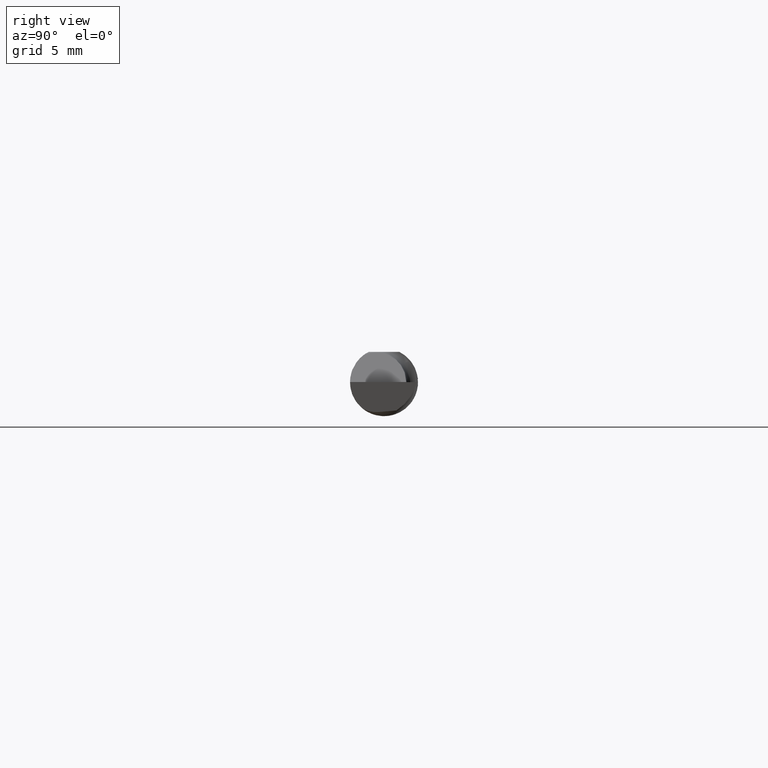
[diagram: clean part render]
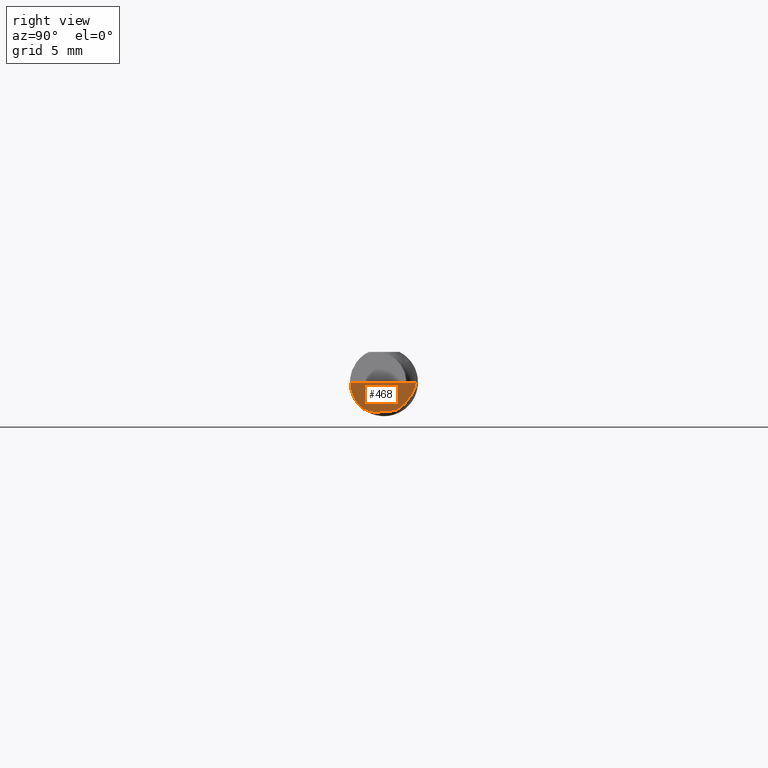
[diagram: same view with one face highlighted and labeled with its STEP entity id]
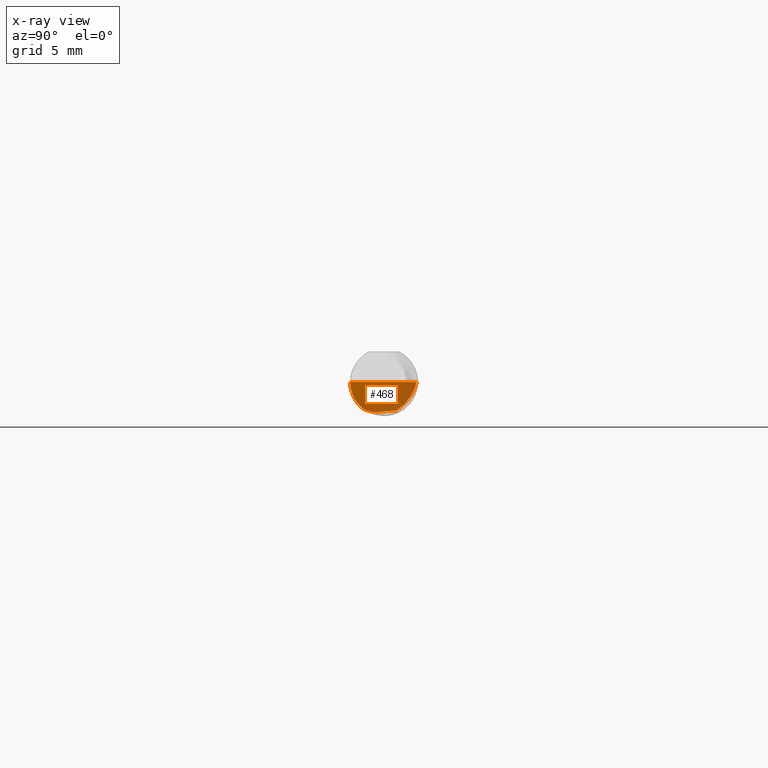
[diagram: x-ray of the same camera — body ghosted, the highlighted face saturated]
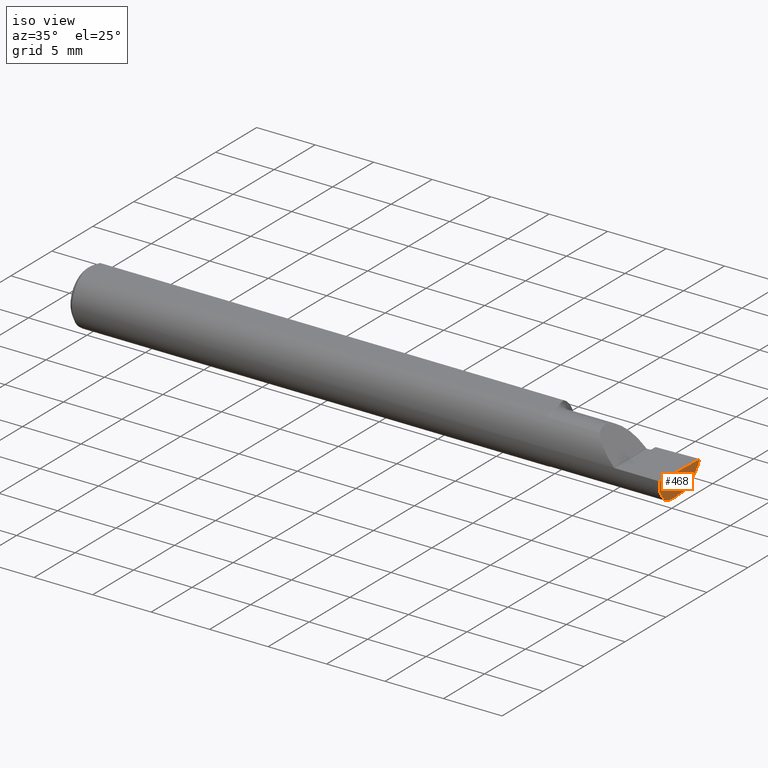
[diagram: same view with one face highlighted and labeled with its STEP entity id]
A machine part, right view. The second image highlights one B-rep face of the part: STEP entity #468.
The next image is the same camera in x-ray: the body ghosted, the highlighted face saturated — about 0% of this face is hidden behind the body in this view.
A second angle (iso view) of the same face is appended — the face is thin or edge-on in the first view.
In plain terms, the highlighted planar face has unit normal (-0.992, 0.0344, 0.1219).
Its self-contained STEP definition (entity closure, byte-faithful):
#16 = CARTESIAN_POINT ( 'NONE',  ( 1.985817582123950320, -0.05743333333333348889, -0.07390786306085575519 ) ) ;
#30 = VECTOR ( 'NONE', #187, 39.37007874015748854 ) ;
#36 = CARTESIAN_POINT ( 'NONE',  ( 1.995700996757002965, 0.08264169502808201007, -0.03297536001410257545 ) ) ;
#52 = EDGE_CURVE ( 'NONE', #448, #343, #501, .T. ) ;
#67 = DIRECTION ( 'NONE',  ( 0.1219414168599299853, 0.000000000000000000, 0.9925372994775525370 ) ) ;
#77 =( BOUNDED_CURVE ( )  B_SPLINE_CURVE ( 3, ( #375, #621, #36, #554 ),
 .UNSPECIFIED., .F., .T. ) 
 B_SPLINE_CURVE_WITH_KNOTS ( ( 4, 4 ),
 ( 3.960321937159471783, 4.773880858322181453 ),
 .UNSPECIFIED. ) 
 CURVE ( )  GEOMETRIC_REPRESENTATION_ITEM ( )  RATIONAL_B_SPLINE_CURVE ( ( 1.000000000000000000, 0.9455998676827520599, 0.9455998676827520599, 1.000000000000000000 ) ) 
 REPRESENTATION_ITEM ( '' )  );
#83 = VERTEX_POINT ( 'NONE', #603 ) ;
#100 = CARTESIAN_POINT ( 'NONE',  ( 2.000000000000000444, 0.08978918869558996652, 4.097771990496394828E-16 ) ) ;
#107 = CARTESIAN_POINT ( 'NONE',  ( 1.999939969396823392, 0.08805703149137224239, -1.868634782302818344E-17 ) ) ;
#120 =( BOUNDED_CURVE ( )  B_SPLINE_CURVE ( 3, ( #171, #362, #274, #127 ),
 .UNSPECIFIED., .F., .F. ) 
 B_SPLINE_CURVE_WITH_KNOTS ( ( 4, 4 ),
 ( 0.3856751006538576276, 1.295854645076564893 ),
 .UNSPECIFIED. ) 
 CURVE ( )  GEOMETRIC_REPRESENTATION_ITEM ( )  RATIONAL_B_SPLINE_CURVE ( ( 1.000000000000000000, 0.9321477153702213414, 0.9321477153702213414, 1.000000000000000000 ) ) 
 REPRESENTATION_ITEM ( '' )  );
#125 = ORIENTED_EDGE ( 'NONE', *, *, #183, .T. ) ;
#127 = CARTESIAN_POINT ( 'NONE',  ( 1.993644362309209273, -0.09359999999999998876, -1.868634782302818344E-17 ) ) ;
#134 = AXIS2_PLACEMENT_3D ( 'NONE', #308, #302, #67 ) ;
#152 = CARTESIAN_POINT ( 'NONE',  ( 1.993644362309209273, -0.09359999999999998876, -1.868634782302818344E-17 ) ) ;
#171 = CARTESIAN_POINT ( 'NONE',  ( 1.985817582123950320, -0.05743333333333348889, -0.07390786306085575519 ) ) ;
#183 = EDGE_CURVE ( 'NONE', #83, #354, #77, .T. ) ;
#187 = DIRECTION ( 'NONE',  ( 0.03463576215158526567, 0.9994000019912840926, 0.000000000000000000 ) ) ;
#190 = EDGE_LOOP ( 'NONE', ( #548, #241, #125, #307, #410 ) ) ;
#209 = EDGE_CURVE ( 'NONE', #343, #83, #234, .T. ) ;
#234 = LINE ( 'NONE', #467, #348 ) ;
#241 = ORIENTED_EDGE ( 'NONE', *, *, #209, .T. ) ;
#262 = CARTESIAN_POINT ( 'NONE',  ( 1.985638364069035822, -0.02892578711483820980, -0.08340817113563987750 ) ) ;
#272 = DIRECTION ( 'NONE',  ( 0.04518627981622180823, 0.9951771633164323561, 0.08706671999006805607 ) ) ;
#274 = CARTESIAN_POINT ( 'NONE',  ( 1.990029385046013344, -0.09360000000000001652, -0.02942396326758928149 ) ) ;
#298 = PLANE ( 'NONE',  #134 ) ;
#302 = DIRECTION ( 'NONE',  ( -0.9919506264397697226, 0.03437759245049861606, 0.1218693392246628648 ) ) ;
#307 = ORIENTED_EDGE ( 'NONE', *, *, #408, .F. ) ;
#308 = CARTESIAN_POINT ( 'NONE',  ( 1.959014883581128075, 0.09122042049864560742, -0.3340004505562900183 ) ) ;
#342 = LINE ( 'NONE', #107, #30 ) ;
#343 = VERTEX_POINT ( 'NONE', #573 ) ;
#348 = VECTOR ( 'NONE', #272, 39.37007874015748854 ) ;
#354 = VERTEX_POINT ( 'NONE', #100 ) ;
#362 = CARTESIAN_POINT ( 'NONE',  ( 1.987230551035694237, -0.08066690435778477164, -0.05585320183932564186 ) ) ;
#375 = CARTESIAN_POINT ( 'NONE',  ( 1.988502654630791344, 0.03415700188930223535, -0.07788914223418023919 ) ) ;
#405 = CARTESIAN_POINT ( 'NONE',  ( 1.985817582123950320, -0.05743333333333348889, -0.07390786306085575519 ) ) ;
#407 = VERTEX_POINT ( 'NONE', #152 ) ;
#408 = EDGE_CURVE ( 'NONE', #407, #354, #342, .T. ) ;
#410 = ORIENTED_EDGE ( 'NONE', *, *, #588, .F. ) ;
#448 = VERTEX_POINT ( 'NONE', #405 ) ;
#467 = CARTESIAN_POINT ( 'NONE',  ( 1.986352243447293553, -0.01320339400140365695, -0.08203263997471643698 ) ) ;
#468 = ADVANCED_FACE ( 'NONE', ( #545 ), #298, .F. ) ;
#500 = CARTESIAN_POINT ( 'NONE',  ( 1.985465187176707502, -0.04383112193845185856, -0.08061315639902377761 ) ) ;
#501 =( BOUNDED_CURVE ( )  B_SPLINE_CURVE ( 3, ( #16, #500, #262, #606 ),
 .UNSPECIFIED., .F., .T. ) 
 B_SPLINE_CURVE_WITH_KNOTS ( ( 4, 4 ),
 ( 6.100130346660554537, 6.645393451497628057 ),
 .UNSPECIFIED. ) 
 CURVE ( )  GEOMETRIC_REPRESENTATION_ITEM ( )  RATIONAL_B_SPLINE_CURVE ( ( 1.000000000000000000, 0.9753770948873836666, 0.9753770948873836666, 1.000000000000000000 ) ) 
 REPRESENTATION_ITEM ( '' )  );
#545 = FACE_OUTER_BOUND ( 'NONE', #190, .T. ) ;
#548 = ORIENTED_EDGE ( 'NONE', *, *, #52, .T. ) ;
#554 = CARTESIAN_POINT ( 'NONE',  ( 2.000000000000000444, 0.08978918869558996652, 4.097771990496394828E-16 ) ) ;
#573 = CARTESIAN_POINT ( 'NONE',  ( 1.986324320446372305, -0.01381836679759350546, -0.08208644312275988064 ) ) ;
#588 = EDGE_CURVE ( 'NONE', #448, #407, #120, .T. ) ;
#603 = CARTESIAN_POINT ( 'NONE',  ( 1.988502654630791344, 0.03415700188930223535, -0.07788914223418023919 ) ) ;
#606 = CARTESIAN_POINT ( 'NONE',  ( 1.986324320446372305, -0.01381836679759350546, -0.08208644312275988064 ) ) ;
#621 = CARTESIAN_POINT ( 'NONE',  ( 1.991648068465035282, 0.06303079732967827031, -0.06043205528099161034 ) ) ;